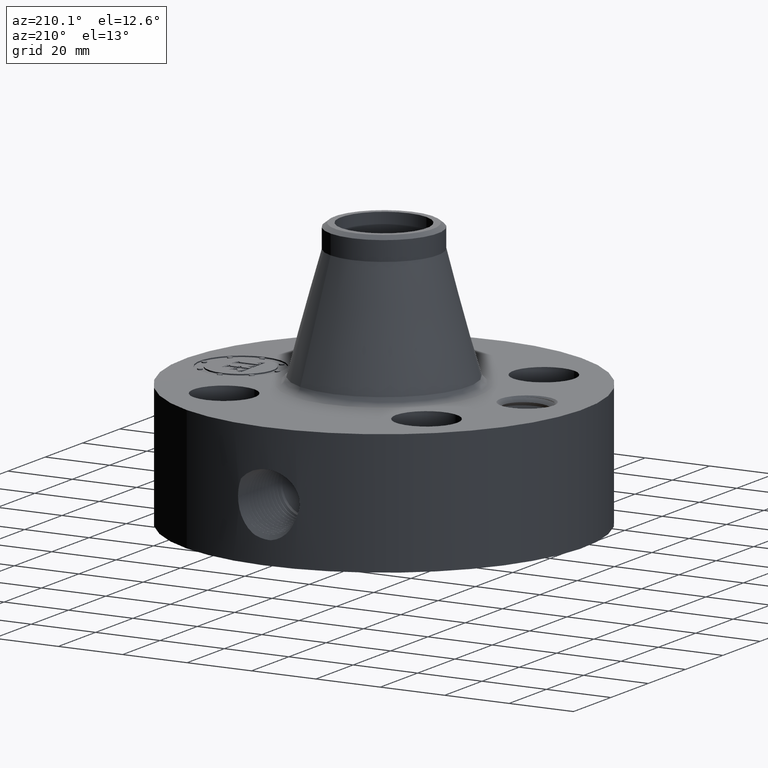
[diagram: clean part render]
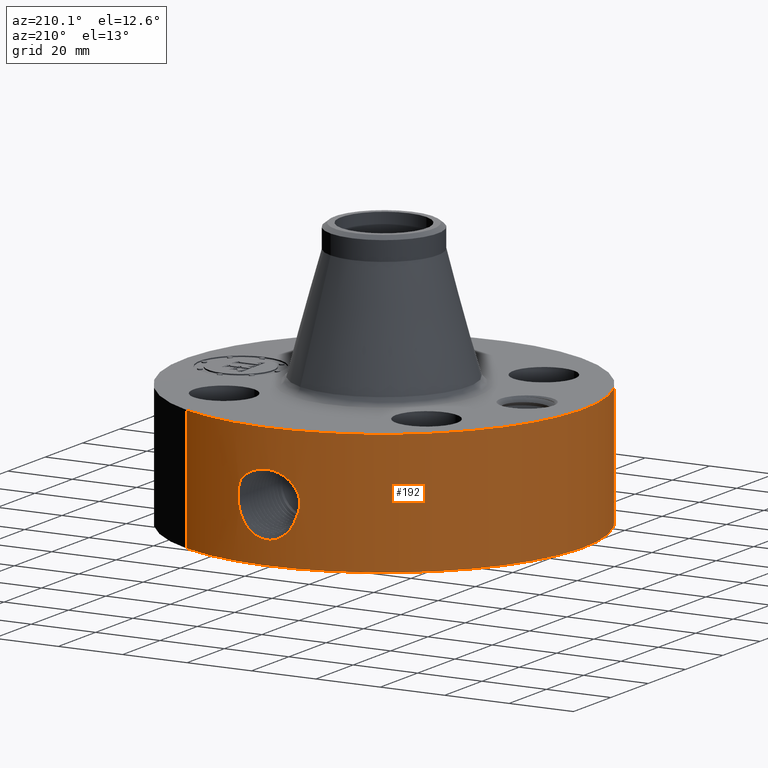
[diagram: same view with one face highlighted and labeled with its STEP entity id]
A machine part, auxiliary view. The second image highlights one B-rep face of the part: STEP entity #192.
In plain terms, the highlighted cylindrical surface (partial cylindrical patch) has radius 61.976 mm, axis along (0, 0, -1).
Its self-contained STEP definition (entity closure, byte-faithful):
#38=AXIS2_PLACEMENT_3D('Cylinder Axis2P3D',#35,#36,#37) ;
#42=AXIS2_PLACEMENT_3D('Circle Axis2P3D',#40,#41,$) ;
#58=AXIS2_PLACEMENT_3D('Circle Axis2P3D',#56,#57,$) ;
#35=CARTESIAN_POINT('Axis2P3D Location',(0.,0.,1.75000000001)) ;
#40=CARTESIAN_POINT('Axis2P3D Location',(0.,0.,0.250000000001)) ;
#44=CARTESIAN_POINT('Vertex',(-1.1697983142,-2.14130145102,0.250000000001)) ;
#46=CARTESIAN_POINT('Vertex',(1.1697983142,2.14130145102,0.250000000001)) ;
#49=CARTESIAN_POINT('Line Origine',(-1.1697983142,-2.14130145102,1.)) ;
#53=CARTESIAN_POINT('Vertex',(-1.1697983142,-2.14130145102,1.75000000001)) ;
#56=CARTESIAN_POINT('Axis2P3D Location',(0.,0.,1.75000000001)) ;
#60=CARTESIAN_POINT('Vertex',(1.1697983142,2.14130145102,1.75000000001)) ;
#63=CARTESIAN_POINT('Line Origine',(1.1697983142,2.14130145102,1.)) ;
#75=CARTESIAN_POINT('Control Point',(-0.16192159428,2.4346214074,1.25474246112)) ;
#76=CARTESIAN_POINT('Control Point',(-0.124761678529,2.43709283592,1.27394650423)) ;
#77=CARTESIAN_POINT('Control Point',(-0.0845285010663,2.43901250296,1.28730102498)) ;
#78=CARTESIAN_POINT('Control Point',(-0.042626626409,2.43998754964,1.2940330846)) ;
#79=CARTESIAN_POINT('Control Point',(-0.000718733828892,2.43999989415,1.29411849633)) ;
#80=CARTESIAN_POINT('Vertex',(-0.161921600554,2.43462140699,1.25474245803)) ;
#82=CARTESIAN_POINT('Vertex',(-0.000718469330936,2.43999989423,1.29411850216)) ;
#86=CARTESIAN_POINT('Control Point',(-0.16989837306,2.43407776024,1.25094225976)) ;
#87=CARTESIAN_POINT('Control Point',(-0.167252431002,2.43426244672,1.25223769882)) ;
#88=CARTESIAN_POINT('Control Point',(-0.164593290179,2.43444371847,1.25350443879)) ;
#89=CARTESIAN_POINT('Control Point',(-0.161921599901,2.43462140702,1.25474245516)) ;
#90=CARTESIAN_POINT('Vertex',(-0.16989837306,2.43407776024,1.25094225976)) ;
#94=CARTESIAN_POINT('Control Point',(-0.328116375832,2.41783780348,0.808661705007)) ;
#95=CARTESIAN_POINT('Control Point',(-0.351266820571,2.41469613699,0.847920653395)) ;
#96=CARTESIAN_POINT('Control Point',(-0.367537068286,2.41220597774,0.891967145635)) ;
#97=CARTESIAN_POINT('Control Point',(-0.374754426077,2.41102143693,0.939647099969)) ;
#98=CARTESIAN_POINT('Control Point',(-0.370017243736,2.41184047452,1.00871566147)) ;
#99=CARTESIAN_POINT('Control Point',(-0.346589033701,2.41527741307,1.0725719509)) ;
#100=CARTESIAN_POINT('Control Point',(-0.337668385426,2.41655315053,1.09162203602)) ;
#101=CARTESIAN_POINT('Control Point',(-0.307764301181,2.42066054004,1.1438749814)) ;
#102=CARTESIAN_POINT('Control Point',(-0.26699888278,2.42558826776,1.18820864016)) ;
#103=CARTESIAN_POINT('Control Point',(-0.236947873254,2.428785004,1.21314596385)) ;
#104=CARTESIAN_POINT('Control Point',(-0.204355865071,2.4316726309,1.23407205562)) ;
#105=CARTESIAN_POINT('Control Point',(-0.16989837306,2.43407776024,1.25094225976)) ;
#106=CARTESIAN_POINT('Vertex',(-0.328116855676,2.4178375316,0.808661757571)) ;
#110=CARTESIAN_POINT('Control Point',(-0.320424227439,2.41886922229,0.790797428485)) ;
#111=CARTESIAN_POINT('Control Point',(-0.323151379819,2.41850796022,0.796680963765)) ;
#112=CARTESIAN_POINT('Control Point',(-0.325717354747,2.41816336819,0.802639990316)) ;
#113=CARTESIAN_POINT('Control Point',(-0.328118233165,2.41783755143,0.808665582031)) ;
#114=CARTESIAN_POINT('Vertex',(-0.320424889206,2.41886937017,0.790798496527)) ;
#118=CARTESIAN_POINT('Control Point',(-0.0268393869742,2.43985238229,0.530897557486)) ;
#119=CARTESIAN_POINT('Control Point',(-0.111814828564,2.43891761723,0.542087008345)) ;
#120=CARTESIAN_POINT('Control Point',(-0.192381472729,2.43423204041,0.582047115165)) ;
#121=CARTESIAN_POINT('Control Point',(-0.253315115583,2.42735806073,0.644291367872)) ;
#122=CARTESIAN_POINT('Control Point',(-0.296042119693,2.42209908944,0.715167636115)) ;
#123=CARTESIAN_POINT('Control Point',(-0.320424558949,2.41886917837,0.790798572524)) ;
#124=CARTESIAN_POINT('Vertex',(-0.0268393869742,2.43985238229,0.530897557486)) ;
#128=CARTESIAN_POINT('Control Point',(-0.0268393869742,2.43985238229,0.530897557486)) ;
#129=CARTESIAN_POINT('Control Point',(-0.0178847963814,2.43995088649,0.530836461707)) ;
#130=CARTESIAN_POINT('Control Point',(-0.00893312393866,2.44000001,0.530995456445)) ;
#131=CARTESIAN_POINT('Control Point',(2.72878353701E-006,2.44000000001,0.531374667804)) ;
#132=CARTESIAN_POINT('Vertex',(2.72878353722E-006,2.44000000001,0.531374667804)) ;
#136=CARTESIAN_POINT('Control Point',(0.165476014271,2.43438240397,0.565083204059)) ;
#137=CARTESIAN_POINT('Control Point',(0.112562343707,2.43797918617,0.544988923625)) ;
#138=CARTESIAN_POINT('Control Point',(0.0565393148663,2.43999993678,0.533773914324)) ;
#139=CARTESIAN_POINT('Control Point',(2.72878354135E-006,2.44000000001,0.531374667804)) ;
#140=CARTESIAN_POINT('Vertex',(0.165476014271,2.43438240397,0.565083204059)) ;
#144=CARTESIAN_POINT('Control Point',(0.165476014271,2.43438240397,0.565083204059)) ;
#145=CARTESIAN_POINT('Control Point',(0.175740725453,2.43368466499,0.570334729546)) ;
#146=CARTESIAN_POINT('Control Point',(0.185738859904,2.43293967132,0.576087631637)) ;
#147=CARTESIAN_POINT('Control Point',(0.195421989316,2.43216164063,0.582285375744)) ;
#148=CARTESIAN_POINT('Vertex',(0.195421989316,2.43216164063,0.582285375744)) ;
#152=CARTESIAN_POINT('Control Point',(0.195421989316,2.43216164063,0.582285375744)) ;
#153=CARTESIAN_POINT('Control Point',(0.247998255534,2.42793718516,0.615937124186)) ;
#154=CARTESIAN_POINT('Control Point',(0.293011536405,2.42289055424,0.660601235615)) ;
#155=CARTESIAN_POINT('Control Point',(0.328229760168,2.41805808128,0.712425717425)) ;
#156=CARTESIAN_POINT('Control Point',(0.382261864304,2.41005605017,0.829676974244)) ;
#157=CARTESIAN_POINT('Control Point',(0.395270513625,2.40773032595,0.958065769552)) ;
#158=CARTESIAN_POINT('Control Point',(0.390965855311,2.40847371399,1.02561774609)) ;
#159=CARTESIAN_POINT('Control Point',(0.375402852349,2.41110143503,1.09202151236)) ;
#160=CARTESIAN_POINT('Control Point',(0.348525615673,2.4149803095,1.15442637902)) ;
#161=CARTESIAN_POINT('Vertex',(0.348525615673,2.4149803095,1.15442637902)) ;
#165=CARTESIAN_POINT('Control Point',(0.348525615673,2.4149803095,1.15442637902)) ;
#166=CARTESIAN_POINT('Control Point',(0.294301956474,2.42280577049,1.21385963823)) ;
#167=CARTESIAN_POINT('Control Point',(0.226049836568,2.43110253319,1.2581066071)) ;
#168=CARTESIAN_POINT('Control Point',(0.151999424152,2.43708486052,1.28575229226)) ;
#169=CARTESIAN_POINT('Control Point',(0.0753413751132,2.44000079858,1.29784713552)) ;
#170=CARTESIAN_POINT('Control Point',(-2.58579354796E-005,2.43999999987,1.29415298447)) ;
#171=CARTESIAN_POINT('Vertex',(-2.58579354725E-005,2.43999999987,1.29415298447)) ;
#175=CARTESIAN_POINT('Control Point',(-0.000718469314818,2.43999989423,1.29411850215)) ;
#176=CARTESIAN_POINT('Control Point',(-0.000372184904082,2.4399999962,1.29413600915)) ;
#177=CARTESIAN_POINT('Control Point',(-2.5857948216E-005,2.43999999987,1.29415298447)) ;
#36=DIRECTION('Axis2P3D Direction',(0.,0.,-0.0393700787402)) ;
#37=DIRECTION('Axis2P3D XDirection',(0.0188750212049,0.0345504945626,0.)) ;
#41=DIRECTION('Axis2P3D Direction',(0.,0.,-0.0393700787402)) ;
#50=DIRECTION('Vector Direction',(0.,0.,-0.0393700787402)) ;
#57=DIRECTION('Axis2P3D Direction',(0.,0.,-0.0393700787402)) ;
#64=DIRECTION('Vector Direction',(0.,0.,-0.0393700787402)) ;
#51=VECTOR('Line Direction',#50,0.0393700787402) ;
#65=VECTOR('Line Direction',#64,0.0393700787402) ;
#69=ORIENTED_EDGE('',*,*,#48,.F.) ;
#70=ORIENTED_EDGE('',*,*,#55,.T.) ;
#71=ORIENTED_EDGE('',*,*,#62,.T.) ;
#72=ORIENTED_EDGE('',*,*,#67,.F.) ;
#180=ORIENTED_EDGE('',*,*,#84,.F.) ;
#181=ORIENTED_EDGE('',*,*,#92,.F.) ;
#182=ORIENTED_EDGE('',*,*,#108,.F.) ;
#183=ORIENTED_EDGE('',*,*,#116,.F.) ;
#184=ORIENTED_EDGE('',*,*,#126,.F.) ;
#185=ORIENTED_EDGE('',*,*,#134,.T.) ;
#186=ORIENTED_EDGE('',*,*,#142,.F.) ;
#187=ORIENTED_EDGE('',*,*,#150,.T.) ;
#188=ORIENTED_EDGE('',*,*,#163,.T.) ;
#189=ORIENTED_EDGE('',*,*,#173,.T.) ;
#190=ORIENTED_EDGE('',*,*,#178,.F.) ;
#191=FACE_BOUND('',#179,.T.) ;
#192=ADVANCED_FACE('PartBody',(#73,#191),#39,.T.) ;
#74=B_SPLINE_CURVE_WITH_KNOTS('',4,(#75,#76,#77,#78,#79),.UNSPECIFIED.,.F.,.U.,(5,5),(0.175518252428,6.37462366422),.UNSPECIFIED.) ;
#85=B_SPLINE_CURVE_WITH_KNOTS('',3,(#86,#87,#88,#89),.UNSPECIFIED.,.F.,.U.,(4,4),(0.,0.330159466821),.UNSPECIFIED.) ;
#93=B_SPLINE_CURVE_WITH_KNOTS('',5,(#94,#95,#96,#97,#98,#99,#100,#101,#102,#103,#104,#105),.UNSPECIFIED.,.F.,.U.,(6,3,3,6),(0.,8.53095212017,12.3556762986,19.5216604213),.UNSPECIFIED.) ;
#109=B_SPLINE_CURVE_WITH_KNOTS('',3,(#110,#111,#112,#113),.UNSPECIFIED.,.F.,.U.,(4,4),(9.56540750269,10.2865901363),.UNSPECIFIED.) ;
#117=B_SPLINE_CURVE_WITH_KNOTS('',5,(#118,#119,#120,#121,#122,#123),.UNSPECIFIED.,.F.,.U.,(6,6),(0.,14.8989557174),.UNSPECIFIED.) ;
#127=B_SPLINE_CURVE_WITH_KNOTS('',3,(#128,#129,#130,#131),.UNSPECIFIED.,.F.,.U.,(4,4),(0.,0.933901051561),.UNSPECIFIED.) ;
#135=B_SPLINE_CURVE_WITH_KNOTS('',3,(#136,#137,#138,#139),.UNSPECIFIED.,.F.,.U.,(4,4),(0.,5.90873404336),.UNSPECIFIED.) ;
#143=B_SPLINE_CURVE_WITH_KNOTS('',3,(#144,#145,#146,#147),.UNSPECIFIED.,.F.,.U.,(4,4),(0.,1.203436921),.UNSPECIFIED.) ;
#151=B_SPLINE_CURVE_WITH_KNOTS('',5,(#152,#153,#154,#155,#156,#157,#158,#159,#160),.UNSPECIFIED.,.F.,.U.,(6,3,6),(0.,10.8904564313,22.7389374505),.UNSPECIFIED.) ;
#164=B_SPLINE_CURVE_WITH_KNOTS('',5,(#165,#166,#167,#168,#169,#170),.UNSPECIFIED.,.F.,.U.,(6,6),(0.,14.0876899543),.UNSPECIFIED.) ;
#174=B_SPLINE_CURVE_WITH_KNOTS('',2,(#175,#176,#177),.UNSPECIFIED.,.F.,.U.,(3,3),(1.28066519652,1.30655945912),.UNSPECIFIED.) ;
#43=CIRCLE('generated circle',#42,2.44000000001) ;
#59=CIRCLE('generated circle',#58,2.44000000001) ;
#39=CYLINDRICAL_SURFACE('generated cylinder',#38,2.44000000001) ;
#48=EDGE_CURVE('',#45,#47,#43,.T.) ;
#55=EDGE_CURVE('',#45,#54,#52,.F.) ;
#62=EDGE_CURVE('',#54,#61,#59,.T.) ;
#67=EDGE_CURVE('',#47,#61,#66,.F.) ;
#84=EDGE_CURVE('',#81,#83,#74,.T.) ;
#92=EDGE_CURVE('',#91,#81,#85,.T.) ;
#108=EDGE_CURVE('',#107,#91,#93,.T.) ;
#116=EDGE_CURVE('',#115,#107,#109,.T.) ;
#126=EDGE_CURVE('',#125,#115,#117,.T.) ;
#134=EDGE_CURVE('',#125,#133,#127,.T.) ;
#142=EDGE_CURVE('',#141,#133,#135,.T.) ;
#150=EDGE_CURVE('',#141,#149,#143,.T.) ;
#163=EDGE_CURVE('',#149,#162,#151,.T.) ;
#173=EDGE_CURVE('',#162,#172,#164,.T.) ;
#178=EDGE_CURVE('',#83,#172,#174,.T.) ;
#68=EDGE_LOOP('',(#69,#70,#71,#72)) ;
#179=EDGE_LOOP('',(#180,#181,#182,#183,#184,#185,#186,#187,#188,#189,#190)) ;
#73=FACE_OUTER_BOUND('',#68,.T.) ;
#52=LINE('Line',#49,#51) ;
#66=LINE('Line',#63,#65) ;
#45=VERTEX_POINT('',#44) ;
#47=VERTEX_POINT('',#46) ;
#54=VERTEX_POINT('',#53) ;
#61=VERTEX_POINT('',#60) ;
#81=VERTEX_POINT('',#80) ;
#83=VERTEX_POINT('',#82) ;
#91=VERTEX_POINT('',#90) ;
#107=VERTEX_POINT('',#106) ;
#115=VERTEX_POINT('',#114) ;
#125=VERTEX_POINT('',#124) ;
#133=VERTEX_POINT('',#132) ;
#141=VERTEX_POINT('',#140) ;
#149=VERTEX_POINT('',#148) ;
#162=VERTEX_POINT('',#161) ;
#172=VERTEX_POINT('',#171) ;